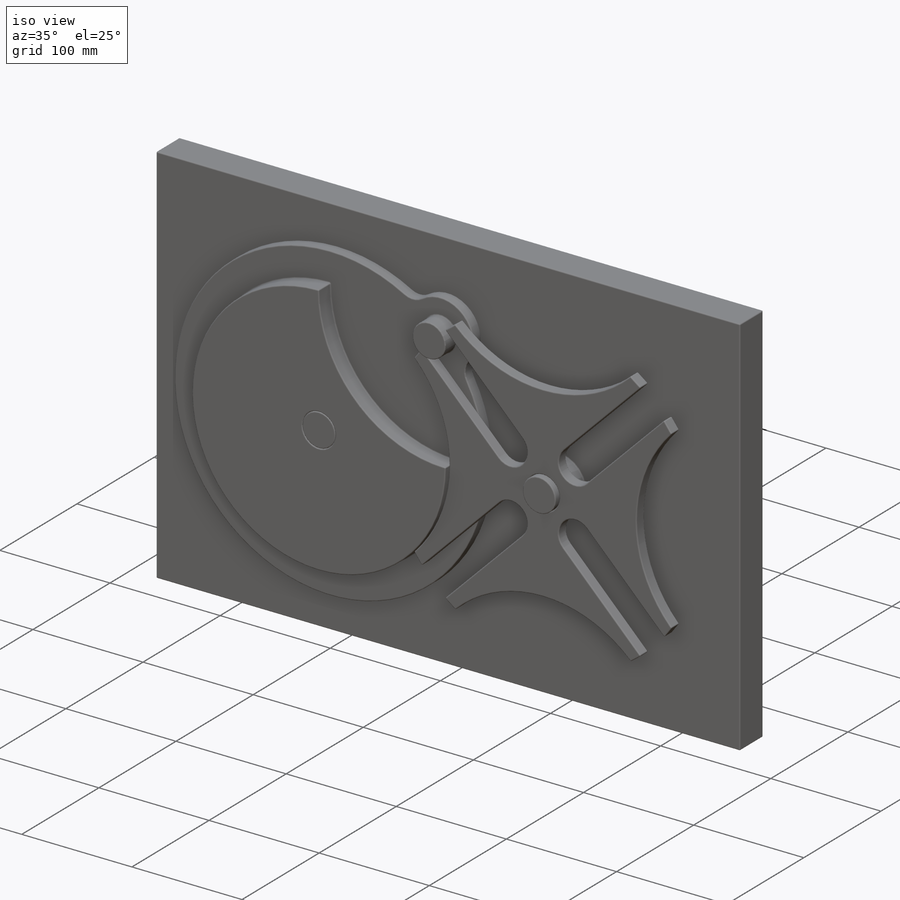
[diagram: iso view]
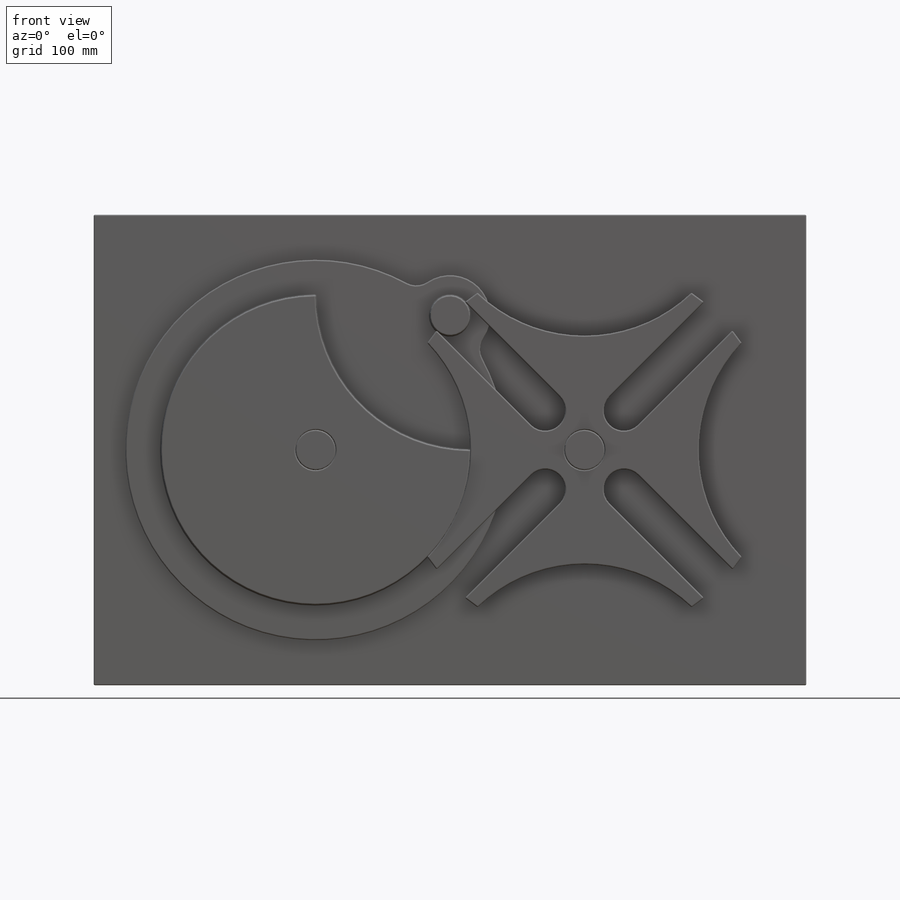
[diagram: front view]
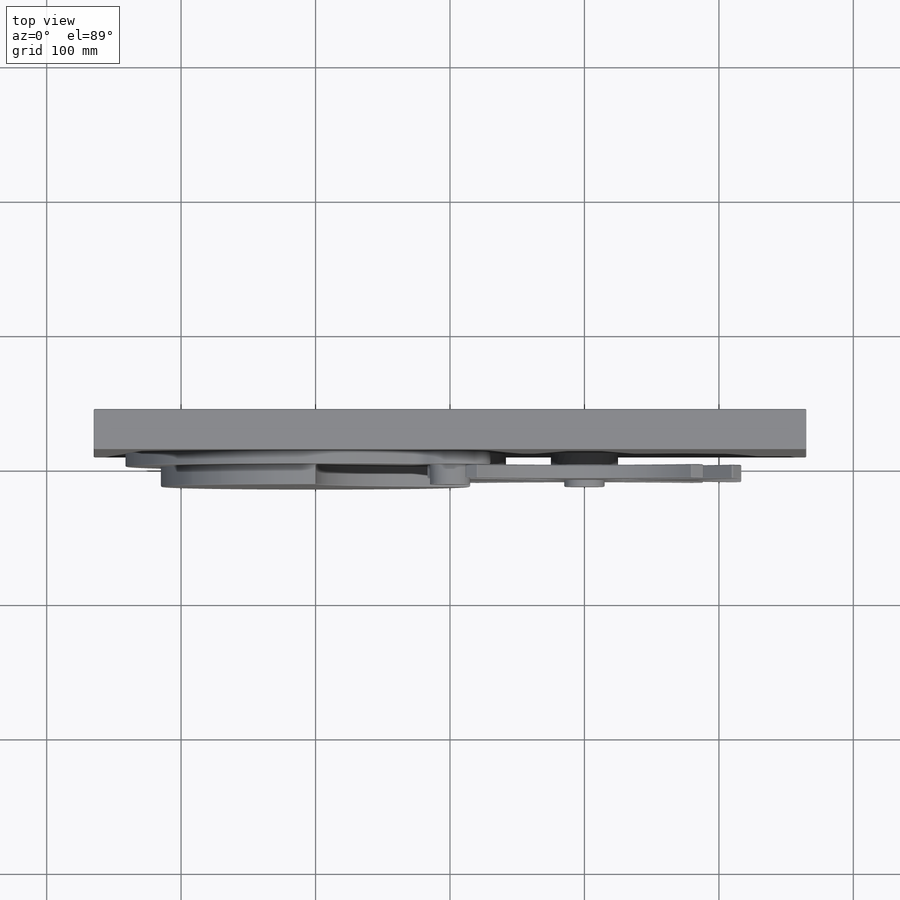
[diagram: top view]
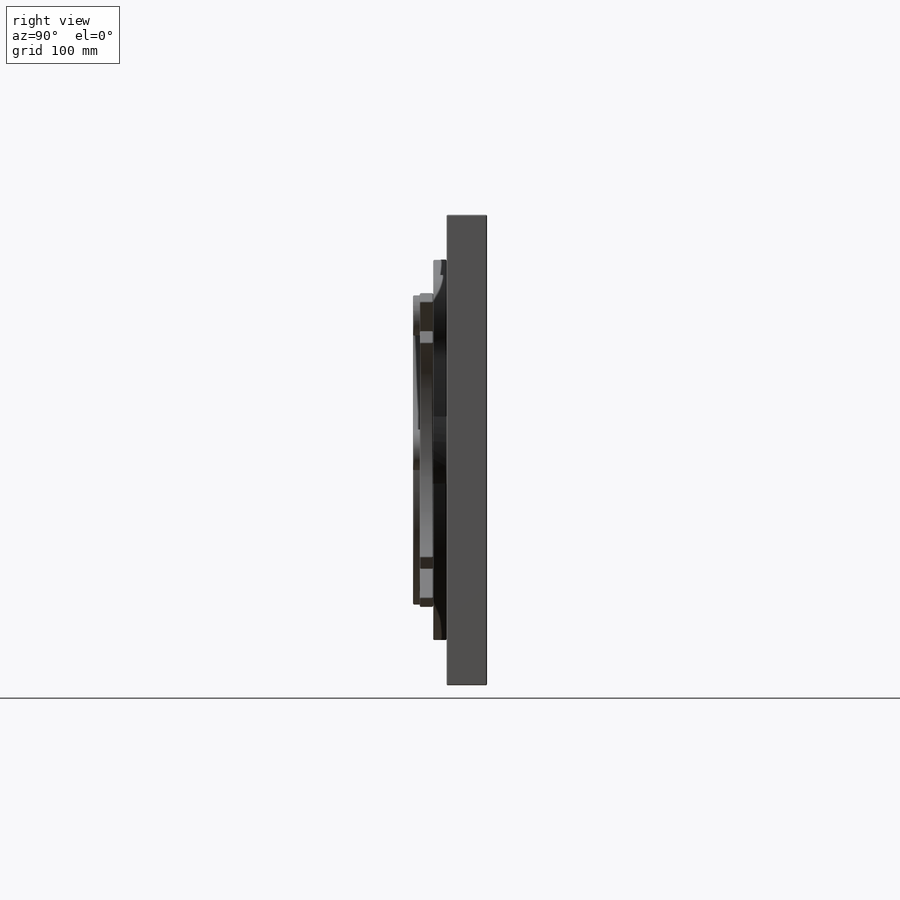
[diagram: right view]
SOLIDWORKS PART (.sldprt)
format: sldprt  version: not decoded by parser v0  size: 792,576 bytes
history: native  units: mm
features: sketch x8, extrude x6, fillet x3, material x1, cut_extrude x1 (+11 scaffold rows collapsed)
feature tree (30):
  scaffold x11  (default folders/planes/origin — collapsed)
  material  "Material <not specified>"
  sketch  "Sketch1"  dims[c1.D1=~19.896402mm c1.D3=~282.842712mm c1.D4=30.0mm c1.D5=230.0mm c1.D6=30.0mm c2.D1=200.0mm c2.D2=100.0mm c2.D6=100.0mm]
  sketch  "Sketch3"  dims[c1.D1=~90.804417mm c2.D1=4.0]
  extrude  "Boss-Extrude2"  Depth=10mm
  sketch  "Sketch4"  dims[c1.D1=~93.839334mm c1.D2=15.0mm c2.D1=15.0mm]
  extrude  "Boss-Extrude3"  Depth=10mm
  sketch  "Sketch5"  dims[D1=115.0mm]
  extrude  "Boss-Extrude4"  Depth=15mm
  sketch  "Sketch6"  dims[D1=30.0mm]
  cut_extrude  "Cut-Extrude1"  [1 undecoded]
  sketch  "Sketch7"  dims[c1.D1=~357.83945mm c1.D2=~524.695637mm c2.D1=350.0mm c2.D2=530.0mm]
  extrude  "Boss-Extrude9"  Depth=30mm
  sketch  "Sketch8"
  extrude  "Boss-Extrude10"  [1 undecoded]
  sketch  "Sketch9"  dims[D1=50.0mm]
  extrude  "Boss-Extrude11"  [1 undecoded]
  fillet  "Fillet3"  Radius=1mm
  fillet  "Fillet4"  Radius=1mm
  fillet  "Fillet5"  Radius=1mm
decode coverage: 14 of 18 modeling features carry decoded parameters
note: ~ marks probable driven/reference dimensions
note: 3 parameter values undecoded
summary: no parameter record found for 3 features
note: suppression state not decoded; provenance and decode notes live in map.json
